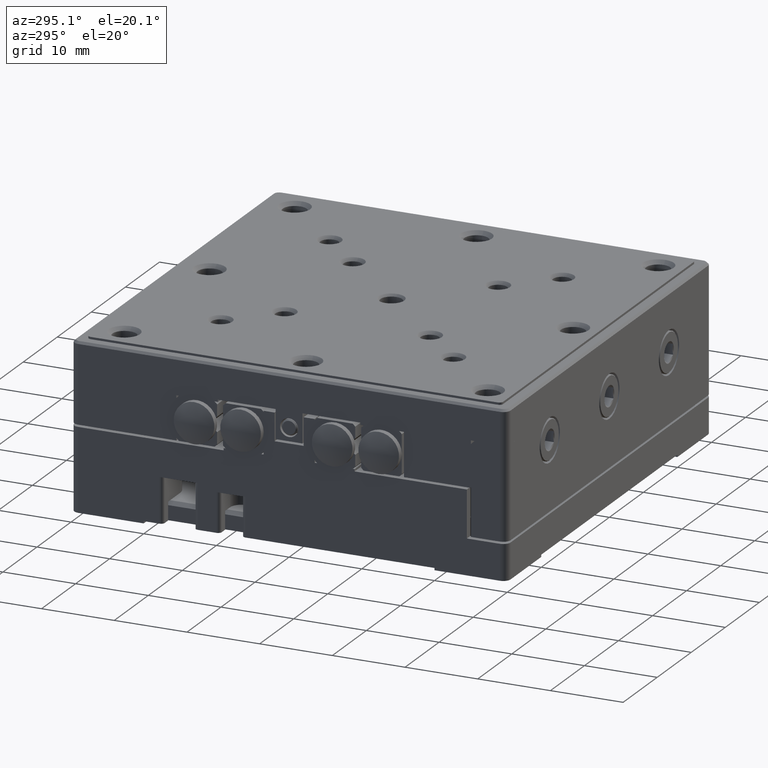
[diagram: clean part render]
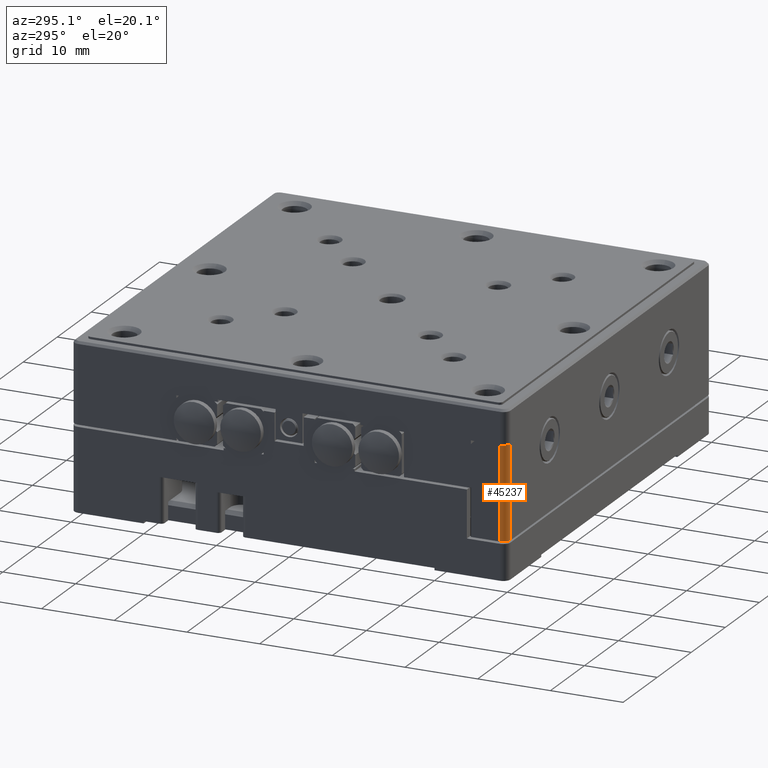
[diagram: same view with one face highlighted and labeled with its STEP entity id]
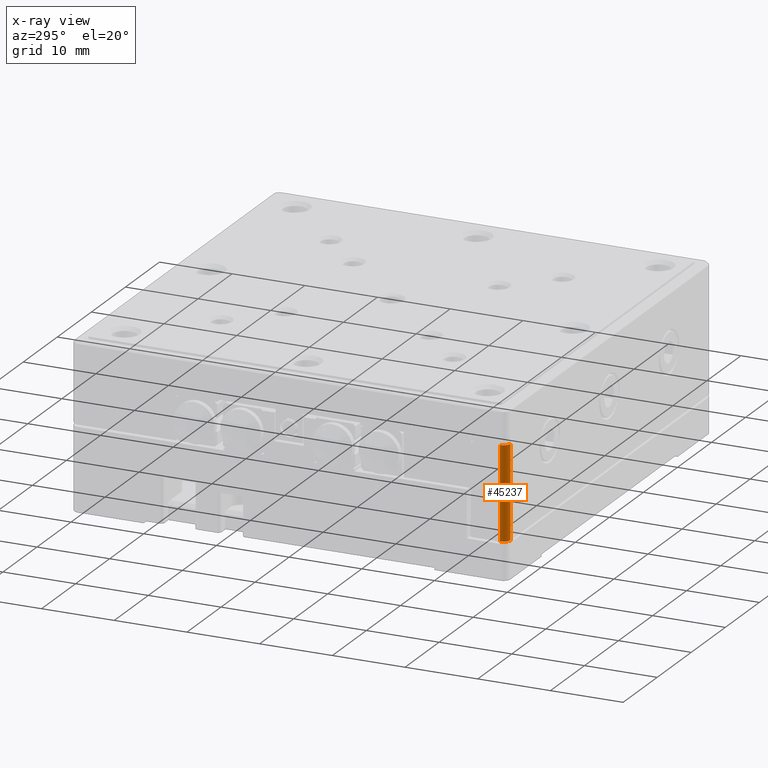
[diagram: x-ray of the same camera — body ghosted, the highlighted face saturated]
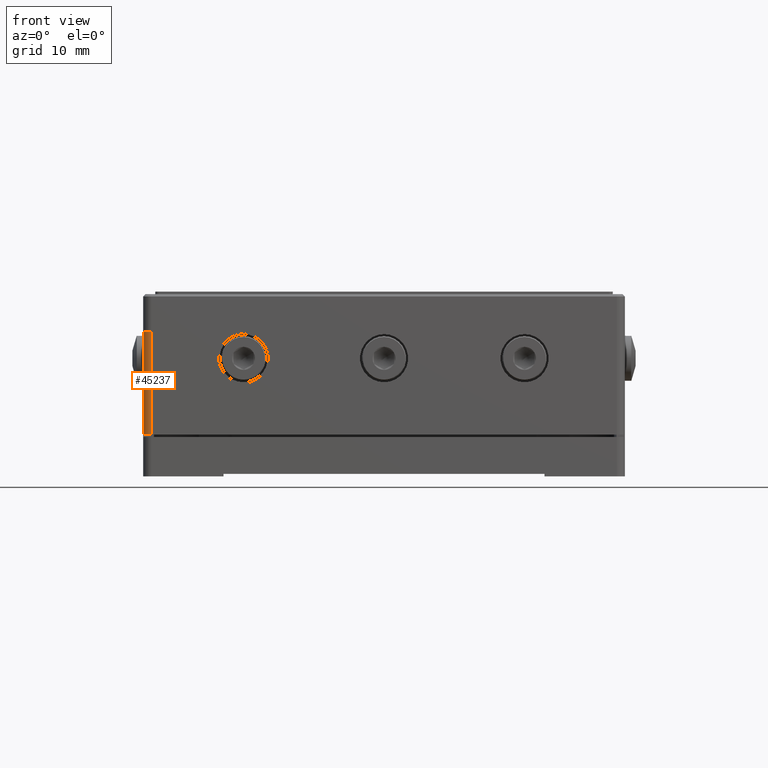
[diagram: same view with one face highlighted and labeled with its STEP entity id]
A machine part, auxiliary view. The second image highlights one B-rep face of the part: STEP entity #45237.
The next image is the same camera in x-ray: the body ghosted, the highlighted face saturated — about 0% of this face is hidden behind the body in this view.
A second angle (front view) of the same face is appended — the face is thin or edge-on in the first view.
In plain terms, the highlighted cylindrical surface (edge-blend (fillet) strip) has radius 1 mm, axis along (0, 0, 1).
Its self-contained STEP definition (entity closure, byte-faithful):
#7101 = VECTOR ( 'NONE', #35153, 1000.000000000000000 ) ;
#11434 = CARTESIAN_POINT ( 'NONE',  ( -29.00000000000000000, -30.00000000000000000, 6.599999999999998757 ) ) ;
#12536 = CARTESIAN_POINT ( 'NONE',  ( -30.00000000000000000, -29.00000000000000000, -6.200000000000001066 ) ) ;
#17268 = EDGE_CURVE ( 'NONE', #50225, #41581, #85859, .T. ) ;
#23748 = FACE_OUTER_BOUND ( 'NONE', #89273, .T. ) ;
#27501 = EDGE_CURVE ( 'NONE', #48484, #41581, #74759, .T. ) ;
#28777 = CARTESIAN_POINT ( 'NONE',  ( -30.00000000000000355, -29.00000000000000000, -22.88607999999999976 ) ) ;
#29207 = CYLINDRICAL_SURFACE ( 'NONE', #80130, 1.000000000000000888 ) ;
#31455 = CARTESIAN_POINT ( 'NONE',  ( -29.00000000000000000, -29.00000000000000000, -6.200000000000001066 ) ) ;
#33188 = DIRECTION ( 'NONE',  ( -0.000000000000000000, -0.000000000000000000, -1.000000000000000000 ) ) ;
#34200 = LINE ( 'NONE', #28777, #7101 ) ;
#35153 = DIRECTION ( 'NONE',  ( -0.000000000000000000, -0.000000000000000000, -1.000000000000000000 ) ) ;
#37239 = ORIENTED_EDGE ( 'NONE', *, *, #59347, .T. ) ;
#37254 = ORIENTED_EDGE ( 'NONE', *, *, #17268, .F. ) ;
#41581 = VERTEX_POINT ( 'NONE', #87872 ) ;
#42702 = ORIENTED_EDGE ( 'NONE', *, *, #84437, .T. ) ;
#45237 = ADVANCED_FACE ( 'NONE', ( #23748 ), #29207, .T. ) ;
#48484 = VERTEX_POINT ( 'NONE', #12536 ) ;
#50225 = VERTEX_POINT ( 'NONE', #11434 ) ;
#50846 = VECTOR ( 'NONE', #63791, 1000.000000000000000 ) ;
#51742 = DIRECTION ( 'NONE',  ( 1.000000000000000000, 0.000000000000000000, 0.000000000000000000 ) ) ;
#53063 = CIRCLE ( 'NONE', #73417, 1.000000000000000888 ) ;
#57363 = ORIENTED_EDGE ( 'NONE', *, *, #27501, .T. ) ;
#59347 = EDGE_CURVE ( 'NONE', #73203, #48484, #34200, .T. ) ;
#60675 = CARTESIAN_POINT ( 'NONE',  ( -30.00000000000000000, -29.00000000000000000, 6.599999999999997868 ) ) ;
#63791 = DIRECTION ( 'NONE',  ( 0.000000000000000000, -0.000000000000000000, -1.000000000000000000 ) ) ;
#65396 = AXIS2_PLACEMENT_3D ( 'NONE', #31455, #92251, #91286 ) ;
#73203 = VERTEX_POINT ( 'NONE', #60675 ) ;
#73417 = AXIS2_PLACEMENT_3D ( 'NONE', #78289, #33188, #85192 ) ;
#74759 = CIRCLE ( 'NONE', #65396, 1.000000000000000888 ) ;
#78289 = CARTESIAN_POINT ( 'NONE',  ( -29.00000000000000000, -29.00000000000000000, 6.599999999999997868 ) ) ;
#80130 = AXIS2_PLACEMENT_3D ( 'NONE', #90456, #96847, #51742 ) ;
#84392 = CARTESIAN_POINT ( 'NONE',  ( -29.00000000000000000, -30.00000000000000000, 6.599999999999999645 ) ) ;
#84437 = EDGE_CURVE ( 'NONE', #50225, #73203, #53063, .T. ) ;
#85192 = DIRECTION ( 'NONE',  ( 1.000000000000000000, 0.000000000000000000, 0.000000000000000000 ) ) ;
#85859 = LINE ( 'NONE', #84392, #50846 ) ;
#87872 = CARTESIAN_POINT ( 'NONE',  ( -29.00000000000000000, -30.00000000000000000, -6.200000000000001066 ) ) ;
#89273 = EDGE_LOOP ( 'NONE', ( #37254, #42702, #37239, #57363 ) ) ;
#90456 = CARTESIAN_POINT ( 'NONE',  ( -29.00000000000000000, -29.00000000000000000, -22.88607999999999976 ) ) ;
#91286 = DIRECTION ( 'NONE',  ( 1.000000000000000000, 0.000000000000000000, 0.000000000000000000 ) ) ;
#92251 = DIRECTION ( 'NONE',  ( 0.000000000000000000, 0.000000000000000000, 1.000000000000000000 ) ) ;
#96847 = DIRECTION ( 'NONE',  ( 0.000000000000000000, 0.000000000000000000, 1.000000000000000000 ) ) ;